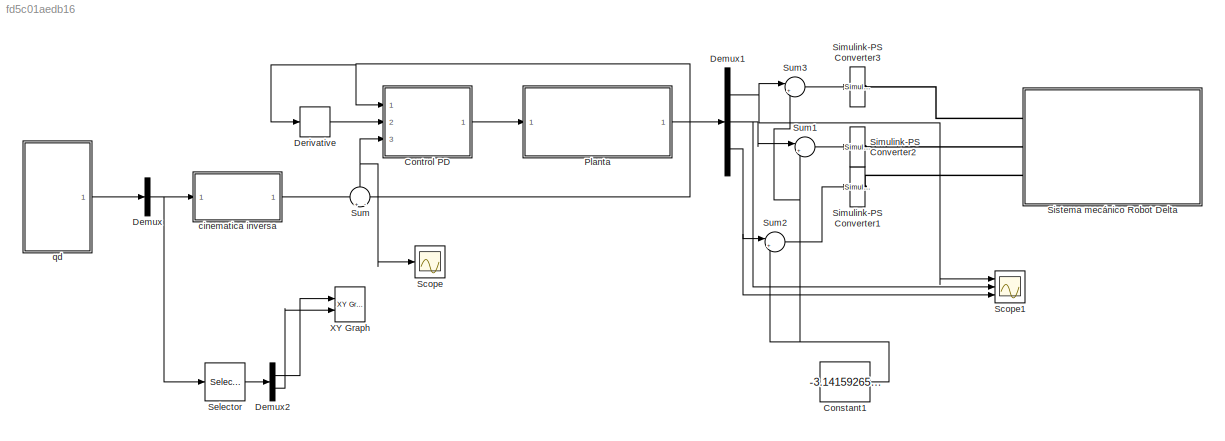
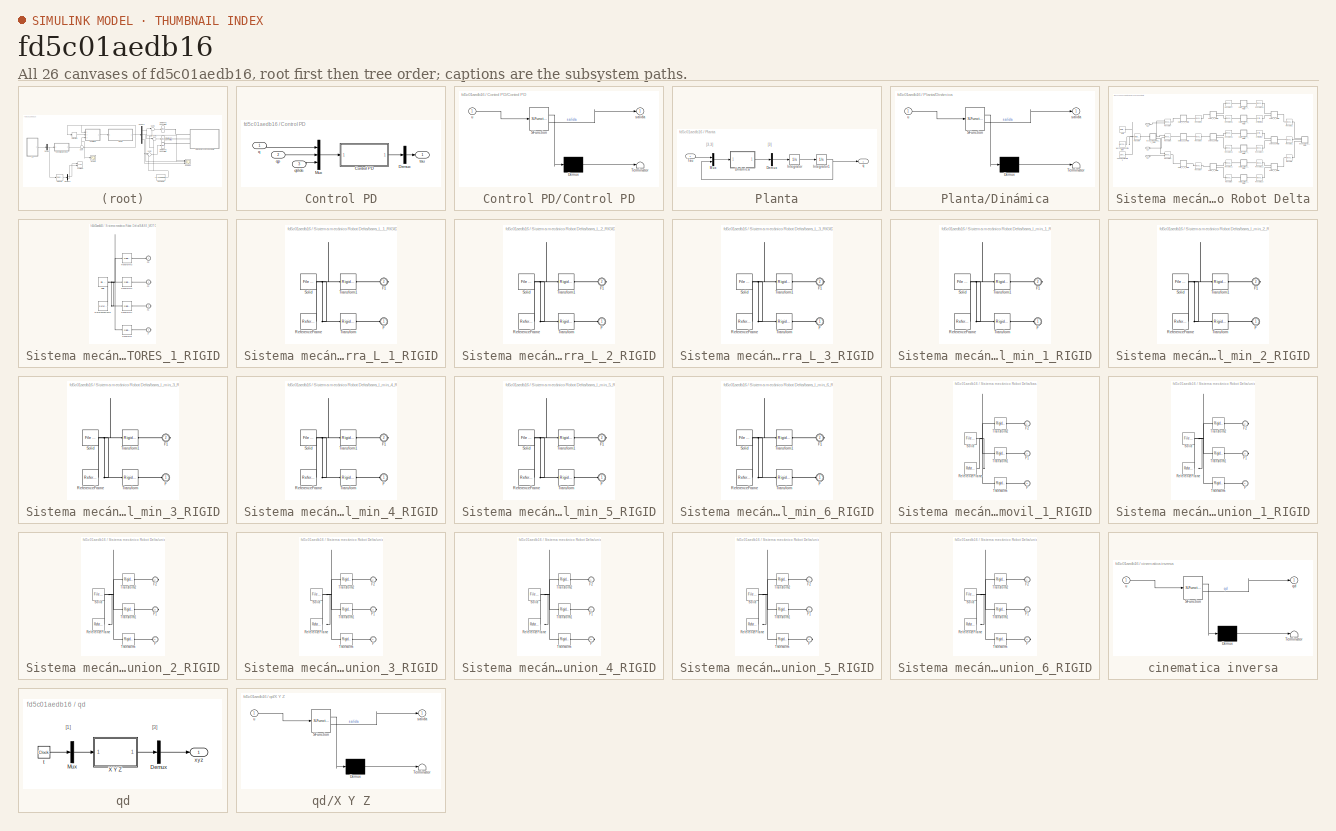
[diagram: thumbnail index - all 26 canvases of the model, root first then tree order]
MODEL slx_fd5c01aedb16
KIND model
CONFIG AbsTol = auto
CONFIG EnableMultiTasking = off
CONFIG FixedStep = auto
CONFIG MaxStep = 0.001
CONFIG MinStep = auto
CONFIG RelTol = 1e-3
CONFIG SampleTimeConstraint = Unconstrained
CONFIG SolverName = VariableStepAuto
CONFIG StartTime = 0.0
CONFIG StopTime = 25
WORKSPACE source: external: MATLAB File  (data not in archive)
BLOCK [Constant] Constant1
  Value = -3.141592654/2
BLOCK [SubSystem] Control PD
  Ports = [3, 1]
  RequestExecContextInheritance = off
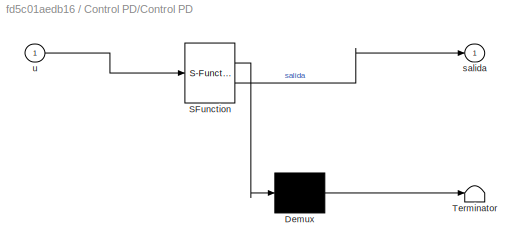
BLOCK [SubSystem] Control PD/Control PD
  ErrorFcn = Stateflow.Translate.translate
  PermitHierarchicalResolution = ExplicitOnly
  Ports = [1, 1]
  RequestExecContextInheritance = off
  SFBlockType = MATLAB Function
  TreatAsAtomicUnit = on
BLOCK [Demux] Control PD/Control PD/ Demux 
  Outputs = 1
  Ports = [1, 1]
BLOCK [S-Function] Control PD/Control PD/ SFunction 
  EnableBusSupport = on
  FunctionName = sf_sfun
  PortCounts = [1 2]
  Ports = [1, 2]
  SFcnIsStateOwnerBlock = off
  SFunctionDeploymentMode = off
  Tag = Stateflow S-Function 1
BLOCK [Terminator] Control PD/Control PD/ Terminator 
BLOCK [Outport] Control PD/Control PD/salida
BLOCK [Inport] Control PD/Control PD/u
BLOCK [Demux] Control PD/Demux
  Outputs = [3]
  Ports = [1, 1]
BLOCK [Mux] Control PD/Mux
  DisplayOption = bar
  Inputs = [3,3,3]
  Ports = [3, 1]
BLOCK [Inport] Control PD/q
BLOCK [Inport] Control PD/qp
  Port = 2
BLOCK [Inport] Control PD/qtilde
  Port = 3
BLOCK [Outport] Control PD/tau
BLOCK [Demux] Demux
  Outputs = [3]
  Ports = [1, 1]
BLOCK [Demux] Demux1
  Outputs = 3
  Ports = [1, 3]
BLOCK [Demux] Demux2
  Outputs = 2
  Ports = [1, 2]
BLOCK [Derivative] Derivative
BLOCK [SubSystem] Planta
  Ports = [1, 1]
  RequestExecContextInheritance = off
BLOCK [Demux] Planta/Demux
  Outputs = [3]
  Ports = [1, 1]
BLOCK [SubSystem] Planta/Dinámica
  ErrorFcn = Stateflow.Translate.translate
  PermitHierarchicalResolution = ExplicitOnly
  Ports = [1, 1]
  RequestExecContextInheritance = off
  SFBlockType = MATLAB Function
  TreatAsAtomicUnit = on
BLOCK [Demux] Planta/Dinámica/ Demux 
  Outputs = 1
  Ports = [1, 1]
BLOCK [S-Function] Planta/Dinámica/ SFunction 
  EnableBusSupport = on
  FunctionName = sf_sfun
  PortCounts = [1 2]
  Ports = [1, 2]
  SFcnIsStateOwnerBlock = off
  SFunctionDeploymentMode = off
  Tag = Stateflow S-Function 2
BLOCK [Terminator] Planta/Dinámica/ Terminator 
BLOCK [Outport] Planta/Dinámica/salida
BLOCK [Inport] Planta/Dinámica/u
BLOCK [Integrator] Planta/Integrator
  Ports = [1, 1]
BLOCK [Integrator] Planta/Integrator1
  Ports = [1, 1]
BLOCK [Mux] Planta/Mux
  DisplayOption = bar
  Inputs = [3,3]
  Ports = [2, 1]
BLOCK [Inport] Planta/Tau
BLOCK [Outport] Planta/q
BLOCK [Scope] Scope
  Floating = off
  NumInputPorts = 1
  Ports = [1]
  ScopeSpecificationString = Simulink.scopes.TimeScopeBlockCfg('CurrentConfiguration', extmgr.ConfigurationSet(extmgr.Configuration('Core','General UI',true),extmgr.Configuration('Core','Source UI',true),extmgr.Configuration('Sources','WiredSimulink',true),extmgr.Configuration('Visuals','Time Domain',true,'SerializedDisplays',{struct('MinYLimReal','-0.23126','MaxYLimReal','1.00549','YLabelReal','','MinYLimMag','0.00000','MaxY...<+1370ch>
BLOCK [Scope] Scope1
  Floating = off
  NumInputPorts = 3
  Ports = [3]
  ScopeSpecificationString = Simulink.scopes.TimeScopeBlockCfg('CurrentConfiguration', extmgr.ConfigurationSet(extmgr.Configuration('Core','General UI',true),extmgr.Configuration('Core','Source UI',true),extmgr.Configuration('Sources','WiredSimulink',true,'DataLoggingVariableName','ScopeData1'),extmgr.Configuration('Visuals','Time Domain',true,'SerializedDisplays',{struct('MinYLimReal','-0.20833','MaxYLimReal','1.87497','YLab...<+1418ch>
BLOCK [Selector] Selector
  IndexOptions = Index vector (dialog)
  Indices = [1 2]
  InputPortWidth = 3
  OutputSizes = 1
  Ports = [1, 1]
BLOCK [Reference] Simulink-PS Converter1  REF=nesl_utility/Simulink-PS
Converter
  Ports = [1, 0, 0, 0, 0, 0, 1]
  SourceBlock = nesl_utility/Simulink-PS\nConverter
  SourceProductBaseCode = SS
  SourceType = Simulink-PS\nConverter
BLOCK [Reference] Simulink-PS Converter2  REF=nesl_utility/Simulink-PS
Converter
  Ports = [1, 0, 0, 0, 0, 0, 1]
  SourceBlock = nesl_utility/Simulink-PS\nConverter
  SourceProductBaseCode = SS
  SourceType = Simulink-PS\nConverter
BLOCK [Reference] Simulink-PS Converter3  REF=nesl_utility/Simulink-PS
Converter
  Ports = [1, 0, 0, 0, 0, 0, 1]
  SourceBlock = nesl_utility/Simulink-PS\nConverter
  SourceProductBaseCode = SS
  SourceType = Simulink-PS\nConverter
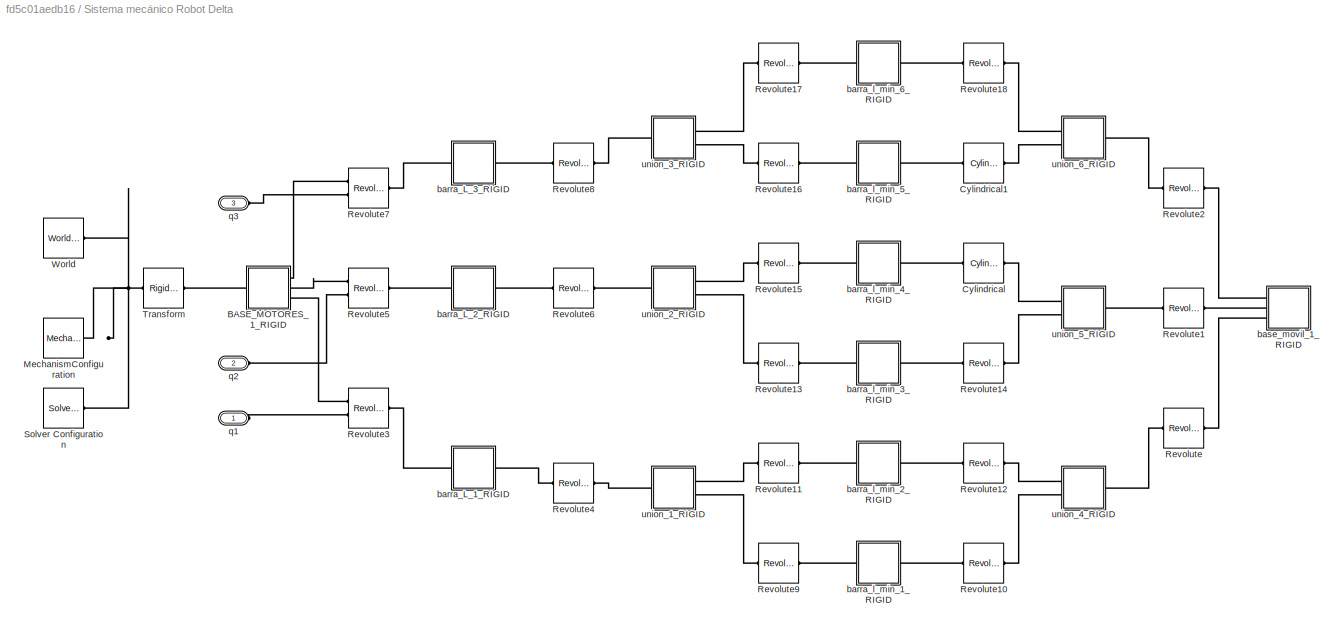
BLOCK [SubSystem] Sistema mecánico Robot Delta
  Ports = [0, 0, 0, 0, 0, 3]
  RequestExecContextInheritance = off
BLOCK [SubSystem] Sistema mecánico Robot Delta/BASE_MOTORES_1_RIGID
  Ports = [0, 0, 0, 0, 0, 1, 3]
  RequestExecContextInheritance = off
BLOCK [PMIOPort] Sistema mecánico Robot Delta/BASE_MOTORES_1_RIGID/F
  Port = 4
  Side = Right
BLOCK [PMIOPort] Sistema mecánico Robot Delta/BASE_MOTORES_1_RIGID/F1
  Port = 3
  Side = Right
BLOCK [PMIOPort] Sistema mecánico Robot Delta/BASE_MOTORES_1_RIGID/F2
  Port = 2
  Side = Right
BLOCK [PMIOPort] Sistema mecánico Robot Delta/BASE_MOTORES_1_RIGID/F3
  Side = Left
BLOCK [Reference] Sistema mecánico Robot Delta/BASE_MOTORES_1_RIGID/ReferenceFrame  REF=sm_lib/Frames and
Transforms/Reference
Frame
  Ports = [0, 0, 0, 0, 0, 0, 1]
  SourceBlock = sm_lib/Frames and\nTransforms/Reference\nFrame
  SourceProductBaseCode = MS
  SourceType = Reference\nFrame
BLOCK [Reference] Sistema mecánico Robot Delta/BASE_MOTORES_1_RIGID/Solid  REF=sm_lib/Body Elements/File Solid
  Ports = [0, 0, 0, 0, 0, 0, 1]
  SourceBlock = sm_lib/Body Elements/File Solid
  SourceProductBaseCode = MS
  SourceType = File Solid
BLOCK [Reference] Sistema mecánico Robot Delta/BASE_MOTORES_1_RIGID/Transform  REF=sm_lib/Frames and
Transforms/Rigid
Transform
  Ports = [0, 0, 0, 0, 0, 1, 1]
  SourceBlock = sm_lib/Frames and\nTransforms/Rigid\nTransform
  SourceProductBaseCode = MS
  SourceType = Rigid\nTransform
BLOCK [Reference] Sistema mecánico Robot Delta/BASE_MOTORES_1_RIGID/Transform1  REF=sm_lib/Frames and
Transforms/Rigid
Transform
  Ports = [0, 0, 0, 0, 0, 1, 1]
  SourceBlock = sm_lib/Frames and\nTransforms/Rigid\nTransform
  SourceProductBaseCode = MS
  SourceType = Rigid\nTransform
BLOCK [Reference] Sistema mecánico Robot Delta/BASE_MOTORES_1_RIGID/Transform2  REF=sm_lib/Frames and
Transforms/Rigid
Transform
  Ports = [0, 0, 0, 0, 0, 1, 1]
  SourceBlock = sm_lib/Frames and\nTransforms/Rigid\nTransform
  SourceProductBaseCode = MS
  SourceType = Rigid\nTransform
BLOCK [Reference] Sistema mecánico Robot Delta/BASE_MOTORES_1_RIGID/Transform3  REF=sm_lib/Frames and
Transforms/Rigid
Transform
  Ports = [0, 0, 0, 0, 0, 1, 1]
  SourceBlock = sm_lib/Frames and\nTransforms/Rigid\nTransform
  SourceProductBaseCode = MS
  SourceType = Rigid\nTransform
BLOCK [Reference] Sistema mecánico Robot Delta/Cylindrical  REF=sm_lib/Joints/Cylindrical
Joint
  Ports = [0, 0, 0, 0, 0, 1, 1]
  SourceBlock = sm_lib/Joints/Cylindrical\nJoint
  SourceProductBaseCode = MS
  SourceType = Cylindrical\nJoint
BLOCK [Reference] Sistema mecánico Robot Delta/Cylindrical1  REF=sm_lib/Joints/Cylindrical
Joint
  Ports = [0, 0, 0, 0, 0, 1, 1]
  SourceBlock = sm_lib/Joints/Cylindrical\nJoint
  SourceProductBaseCode = MS
  SourceType = Cylindrical\nJoint
BLOCK [Reference] Sistema mecánico Robot Delta/MechanismConfiguration  REF=sm_lib/Utilities/Mechanism
Configuration
  Ports = [0, 0, 0, 0, 0, 0, 1]
  SourceBlock = sm_lib/Utilities/Mechanism\nConfiguration
  SourceProductBaseCode = MS
  SourceType = Mechanism\nConfiguration
BLOCK [Reference] Sistema mecánico Robot Delta/Revolute  REF=sm_lib/Joints/Revolute Joint
  Ports = [0, 0, 0, 0, 0, 1, 1]
  SourceBlock = sm_lib/Joints/Revolute Joint
  SourceProductBaseCode = MS
  SourceType = Revolute Joint
BLOCK [Reference] Sistema mecánico Robot Delta/Revolute1  REF=sm_lib/Joints/Revolute Joint
  Ports = [0, 0, 0, 0, 0, 1, 1]
  SourceBlock = sm_lib/Joints/Revolute Joint
  SourceProductBaseCode = MS
  SourceType = Revolute Joint
BLOCK [Reference] Sistema mecánico Robot Delta/Revolute10  REF=sm_lib/Joints/Revolute Joint
  Ports = [0, 0, 0, 0, 0, 1, 1]
  SourceBlock = sm_lib/Joints/Revolute Joint
  SourceProductBaseCode = MS
  SourceType = Revolute Joint
BLOCK [Reference] Sistema mecánico Robot Delta/Revolute11  REF=sm_lib/Joints/Revolute Joint
  Ports = [0, 0, 0, 0, 0, 1, 1]
  SourceBlock = sm_lib/Joints/Revolute Joint
  SourceProductBaseCode = MS
  SourceType = Revolute Joint
BLOCK [Reference] Sistema mecánico Robot Delta/Revolute12  REF=sm_lib/Joints/Revolute Joint
  Ports = [0, 0, 0, 0, 0, 1, 1]
  SourceBlock = sm_lib/Joints/Revolute Joint
  SourceProductBaseCode = MS
  SourceType = Revolute Joint
BLOCK [Reference] Sistema mecánico Robot Delta/Revolute13  REF=sm_lib/Joints/Revolute Joint
  Ports = [0, 0, 0, 0, 0, 1, 1]
  SourceBlock = sm_lib/Joints/Revolute Joint
  SourceProductBaseCode = MS
  SourceType = Revolute Joint
BLOCK [Reference] Sistema mecánico Robot Delta/Revolute14  REF=sm_lib/Joints/Revolute Joint
  Ports = [0, 0, 0, 0, 0, 1, 1]
  SourceBlock = sm_lib/Joints/Revolute Joint
  SourceProductBaseCode = MS
  SourceType = Revolute Joint
BLOCK [Reference] Sistema mecánico Robot Delta/Revolute15  REF=sm_lib/Joints/Revolute Joint
  Ports = [0, 0, 0, 0, 0, 1, 1]
  SourceBlock = sm_lib/Joints/Revolute Joint
  SourceProductBaseCode = MS
  SourceType = Revolute Joint
BLOCK [Reference] Sistema mecánico Robot Delta/Revolute16  REF=sm_lib/Joints/Revolute Joint
  Ports = [0, 0, 0, 0, 0, 1, 1]
  SourceBlock = sm_lib/Joints/Revolute Joint
  SourceProductBaseCode = MS
  SourceType = Revolute Joint
BLOCK [Reference] Sistema mecánico Robot Delta/Revolute17  REF=sm_lib/Joints/Revolute Joint
  Ports = [0, 0, 0, 0, 0, 1, 1]
  SourceBlock = sm_lib/Joints/Revolute Joint
  SourceProductBaseCode = MS
  SourceType = Revolute Joint
BLOCK [Reference] Sistema mecánico Robot Delta/Revolute18  REF=sm_lib/Joints/Revolute Joint
  Ports = [0, 0, 0, 0, 0, 1, 1]
  SourceBlock = sm_lib/Joints/Revolute Joint
  SourceProductBaseCode = MS
  SourceType = Revolute Joint
BLOCK [Reference] Sistema mecánico Robot Delta/Revolute2  REF=sm_lib/Joints/Revolute Joint
  Ports = [0, 0, 0, 0, 0, 1, 1]
  SourceBlock = sm_lib/Joints/Revolute Joint
  SourceProductBaseCode = MS
  SourceType = Revolute Joint
BLOCK [Reference] Sistema mecánico Robot Delta/Revolute3  REF=sm_lib/Joints/Revolute Joint
  Ports = [0, 0, 0, 0, 0, 2, 1]
  SourceBlock = sm_lib/Joints/Revolute Joint
  SourceProductBaseCode = MS
  SourceType = Revolute Joint
BLOCK [Reference] Sistema mecánico Robot Delta/Revolute4  REF=sm_lib/Joints/Revolute Joint
  Ports = [0, 0, 0, 0, 0, 1, 1]
  SourceBlock = sm_lib/Joints/Revolute Joint
  SourceProductBaseCode = MS
  SourceType = Revolute Joint
BLOCK [Reference] Sistema mecánico Robot Delta/Revolute5  REF=sm_lib/Joints/Revolute Joint
  Ports = [0, 0, 0, 0, 0, 2, 1]
  SourceBlock = sm_lib/Joints/Revolute Joint
  SourceProductBaseCode = MS
  SourceType = Revolute Joint
BLOCK [Reference] Sistema mecánico Robot Delta/Revolute6  REF=sm_lib/Joints/Revolute Joint
  Ports = [0, 0, 0, 0, 0, 1, 1]
  SourceBlock = sm_lib/Joints/Revolute Joint
  SourceProductBaseCode = MS
  SourceType = Revolute Joint
BLOCK [Reference] Sistema mecánico Robot Delta/Revolute7  REF=sm_lib/Joints/Revolute Joint
  Ports = [0, 0, 0, 0, 0, 2, 1]
  SourceBlock = sm_lib/Joints/Revolute Joint
  SourceProductBaseCode = MS
  SourceType = Revolute Joint
BLOCK [Reference] Sistema mecánico Robot Delta/Revolute8  REF=sm_lib/Joints/Revolute Joint
  Ports = [0, 0, 0, 0, 0, 1, 1]
  SourceBlock = sm_lib/Joints/Revolute Joint
  SourceProductBaseCode = MS
  SourceType = Revolute Joint
BLOCK [Reference] Sistema mecánico Robot Delta/Revolute9  REF=sm_lib/Joints/Revolute Joint
  Ports = [0, 0, 0, 0, 0, 1, 1]
  SourceBlock = sm_lib/Joints/Revolute Joint
  SourceProductBaseCode = MS
  SourceType = Revolute Joint
BLOCK [Reference] Sistema mecánico Robot Delta/Solver Configuration  REF=nesl_utility/Solver
Configuration
  Ports = [0, 0, 0, 0, 0, 0, 1]
  SourceBlock = nesl_utility/Solver\nConfiguration
  SourceProductBaseCode = SS
  SourceType = Solver\nConfiguration
BLOCK [Reference] Sistema mecánico Robot Delta/Transform  REF=sm_lib/Frames and
Transforms/Rigid
Transform
  Ports = [0, 0, 0, 0, 0, 1, 1]
  SourceBlock = sm_lib/Frames and\nTransforms/Rigid\nTransform
  SourceProductBaseCode = MS
  SourceType = Rigid\nTransform
BLOCK [Reference] Sistema mecánico Robot Delta/World  REF=sm_lib/Frames and
Transforms/World Frame
  Ports = [0, 0, 0, 0, 0, 0, 1]
  SourceBlock = sm_lib/Frames and\nTransforms/World Frame
  SourceProductBaseCode = MS
  SourceType = World Frame
BLOCK [SubSystem] Sistema mecánico Robot Delta/barra_L_1_RIGID
  Ports = [0, 0, 0, 0, 0, 1, 1]
  RequestExecContextInheritance = off
BLOCK [PMIOPort] Sistema mecánico Robot Delta/barra_L_1_RIGID/F
  Side = Left
BLOCK [PMIOPort] Sistema mecánico Robot Delta/barra_L_1_RIGID/F1
  Port = 2
  Side = Right
BLOCK [Reference] Sistema mecánico Robot Delta/barra_L_1_RIGID/ReferenceFrame  REF=sm_lib/Frames and
Transforms/Reference
Frame
  Ports = [0, 0, 0, 0, 0, 0, 1]
  SourceBlock = sm_lib/Frames and\nTransforms/Reference\nFrame
  SourceProductBaseCode = MS
  SourceType = Reference\nFrame
BLOCK [Reference] Sistema mecánico Robot Delta/barra_L_1_RIGID/Solid  REF=sm_lib/Body Elements/File Solid
  Ports = [0, 0, 0, 0, 0, 0, 1]
  SourceBlock = sm_lib/Body Elements/File Solid
  SourceProductBaseCode = MS
  SourceType = File Solid
BLOCK [Reference] Sistema mecánico Robot Delta/barra_L_1_RIGID/Transform  REF=sm_lib/Frames and
Transforms/Rigid
Transform
  Ports = [0, 0, 0, 0, 0, 1, 1]
  SourceBlock = sm_lib/Frames and\nTransforms/Rigid\nTransform
  SourceProductBaseCode = MS
  SourceType = Rigid\nTransform
BLOCK [Reference] Sistema mecánico Robot Delta/barra_L_1_RIGID/Transform1  REF=sm_lib/Frames and
Transforms/Rigid
Transform
  Ports = [0, 0, 0, 0, 0, 1, 1]
  SourceBlock = sm_lib/Frames and\nTransforms/Rigid\nTransform
  SourceProductBaseCode = MS
  SourceType = Rigid\nTransform
BLOCK [SubSystem] Sistema mecánico Robot Delta/barra_L_2_RIGID
  Ports = [0, 0, 0, 0, 0, 1, 1]
  RequestExecContextInheritance = off
BLOCK [PMIOPort] Sistema mecánico Robot Delta/barra_L_2_RIGID/F
  Side = Left
BLOCK [PMIOPort] Sistema mecánico Robot Delta/barra_L_2_RIGID/F1
  Port = 2
  Side = Right
BLOCK [Reference] Sistema mecánico Robot Delta/barra_L_2_RIGID/ReferenceFrame  REF=sm_lib/Frames and
Transforms/Reference
Frame
  Ports = [0, 0, 0, 0, 0, 0, 1]
  SourceBlock = sm_lib/Frames and\nTransforms/Reference\nFrame
  SourceProductBaseCode = MS
  SourceType = Reference\nFrame
BLOCK [Reference] Sistema mecánico Robot Delta/barra_L_2_RIGID/Solid  REF=sm_lib/Body Elements/File Solid
  Ports = [0, 0, 0, 0, 0, 0, 1]
  SourceBlock = sm_lib/Body Elements/File Solid
  SourceProductBaseCode = MS
  SourceType = File Solid
BLOCK [Reference] Sistema mecánico Robot Delta/barra_L_2_RIGID/Transform  REF=sm_lib/Frames and
Transforms/Rigid
Transform
  Ports = [0, 0, 0, 0, 0, 1, 1]
  SourceBlock = sm_lib/Frames and\nTransforms/Rigid\nTransform
  SourceProductBaseCode = MS
  SourceType = Rigid\nTransform
BLOCK [Reference] Sistema mecánico Robot Delta/barra_L_2_RIGID/Transform1  REF=sm_lib/Frames and
Transforms/Rigid
Transform
  Ports = [0, 0, 0, 0, 0, 1, 1]
  SourceBlock = sm_lib/Frames and\nTransforms/Rigid\nTransform
  SourceProductBaseCode = MS
  SourceType = Rigid\nTransform
BLOCK [SubSystem] Sistema mecánico Robot Delta/barra_L_3_RIGID
  Ports = [0, 0, 0, 0, 0, 1, 1]
  RequestExecContextInheritance = off
BLOCK [PMIOPort] Sistema mecánico Robot Delta/barra_L_3_RIGID/F
  Side = Left
BLOCK [PMIOPort] Sistema mecánico Robot Delta/barra_L_3_RIGID/F1
  Port = 2
  Side = Right
BLOCK [Reference] Sistema mecánico Robot Delta/barra_L_3_RIGID/ReferenceFrame  REF=sm_lib/Frames and
Transforms/Reference
Frame
  Ports = [0, 0, 0, 0, 0, 0, 1]
  SourceBlock = sm_lib/Frames and\nTransforms/Reference\nFrame
  SourceProductBaseCode = MS
  SourceType = Reference\nFrame
BLOCK [Reference] Sistema mecánico Robot Delta/barra_L_3_RIGID/Solid  REF=sm_lib/Body Elements/File Solid
  Ports = [0, 0, 0, 0, 0, 0, 1]
  SourceBlock = sm_lib/Body Elements/File Solid
  SourceProductBaseCode = MS
  SourceType = File Solid
BLOCK [Reference] Sistema mecánico Robot Delta/barra_L_3_RIGID/Transform  REF=sm_lib/Frames and
Transforms/Rigid
Transform
  Ports = [0, 0, 0, 0, 0, 1, 1]
  SourceBlock = sm_lib/Frames and\nTransforms/Rigid\nTransform
  SourceProductBaseCode = MS
  SourceType = Rigid\nTransform
BLOCK [Reference] Sistema mecánico Robot Delta/barra_L_3_RIGID/Transform1  REF=sm_lib/Frames and
Transforms/Rigid
Transform
  Ports = [0, 0, 0, 0, 0, 1, 1]
  SourceBlock = sm_lib/Frames and\nTransforms/Rigid\nTransform
  SourceProductBaseCode = MS
  SourceType = Rigid\nTransform
BLOCK [SubSystem] Sistema mecánico Robot Delta/barra_l_min_1_RIGID
  Ports = [0, 0, 0, 0, 0, 1, 1]
  RequestExecContextInheritance = off
BLOCK [PMIOPort] Sistema mecánico Robot Delta/barra_l_min_1_RIGID/F
  Side = Left
BLOCK [PMIOPort] Sistema mecánico Robot Delta/barra_l_min_1_RIGID/F1
  Port = 2
  Side = Right
BLOCK [Reference] Sistema mecánico Robot Delta/barra_l_min_1_RIGID/ReferenceFrame  REF=sm_lib/Frames and
Transforms/Reference
Frame
  Ports = [0, 0, 0, 0, 0, 0, 1]
  SourceBlock = sm_lib/Frames and\nTransforms/Reference\nFrame
  SourceProductBaseCode = MS
  SourceType = Reference\nFrame
BLOCK [Reference] Sistema mecánico Robot Delta/barra_l_min_1_RIGID/Solid  REF=sm_lib/Body Elements/File Solid
  Ports = [0, 0, 0, 0, 0, 0, 1]
  SourceBlock = sm_lib/Body Elements/File Solid
  SourceProductBaseCode = MS
  SourceType = File Solid
BLOCK [Reference] Sistema mecánico Robot Delta/barra_l_min_1_RIGID/Transform  REF=sm_lib/Frames and
Transforms/Rigid
Transform
  Ports = [0, 0, 0, 0, 0, 1, 1]
  SourceBlock = sm_lib/Frames and\nTransforms/Rigid\nTransform
  SourceProductBaseCode = MS
  SourceType = Rigid\nTransform
BLOCK [Reference] Sistema mecánico Robot Delta/barra_l_min_1_RIGID/Transform1  REF=sm_lib/Frames and
Transforms/Rigid
Transform
  Ports = [0, 0, 0, 0, 0, 1, 1]
  SourceBlock = sm_lib/Frames and\nTransforms/Rigid\nTransform
  SourceProductBaseCode = MS
  SourceType = Rigid\nTransform
BLOCK [SubSystem] Sistema mecánico Robot Delta/barra_l_min_2_RIGID
  Ports = [0, 0, 0, 0, 0, 1, 1]
  RequestExecContextInheritance = off
BLOCK [PMIOPort] Sistema mecánico Robot Delta/barra_l_min_2_RIGID/F
  Side = Left
BLOCK [PMIOPort] Sistema mecánico Robot Delta/barra_l_min_2_RIGID/F1
  Port = 2
  Side = Right
BLOCK [Reference] Sistema mecánico Robot Delta/barra_l_min_2_RIGID/ReferenceFrame  REF=sm_lib/Frames and
Transforms/Reference
Frame
  Ports = [0, 0, 0, 0, 0, 0, 1]
  SourceBlock = sm_lib/Frames and\nTransforms/Reference\nFrame
  SourceProductBaseCode = MS
  SourceType = Reference\nFrame
BLOCK [Reference] Sistema mecánico Robot Delta/barra_l_min_2_RIGID/Solid  REF=sm_lib/Body Elements/File Solid
  Ports = [0, 0, 0, 0, 0, 0, 1]
  SourceBlock = sm_lib/Body Elements/File Solid
  SourceProductBaseCode = MS
  SourceType = File Solid
BLOCK [Reference] Sistema mecánico Robot Delta/barra_l_min_2_RIGID/Transform  REF=sm_lib/Frames and
Transforms/Rigid
Transform
  Ports = [0, 0, 0, 0, 0, 1, 1]
  SourceBlock = sm_lib/Frames and\nTransforms/Rigid\nTransform
  SourceProductBaseCode = MS
  SourceType = Rigid\nTransform
BLOCK [Reference] Sistema mecánico Robot Delta/barra_l_min_2_RIGID/Transform1  REF=sm_lib/Frames and
Transforms/Rigid
Transform
  Ports = [0, 0, 0, 0, 0, 1, 1]
  SourceBlock = sm_lib/Frames and\nTransforms/Rigid\nTransform
  SourceProductBaseCode = MS
  SourceType = Rigid\nTransform
BLOCK [SubSystem] Sistema mecánico Robot Delta/barra_l_min_3_RIGID
  Ports = [0, 0, 0, 0, 0, 1, 1]
  RequestExecContextInheritance = off
BLOCK [PMIOPort] Sistema mecánico Robot Delta/barra_l_min_3_RIGID/F
  Side = Left
BLOCK [PMIOPort] Sistema mecánico Robot Delta/barra_l_min_3_RIGID/F1
  Port = 2
  Side = Right
BLOCK [Reference] Sistema mecánico Robot Delta/barra_l_min_3_RIGID/ReferenceFrame  REF=sm_lib/Frames and
Transforms/Reference
Frame
  Ports = [0, 0, 0, 0, 0, 0, 1]
  SourceBlock = sm_lib/Frames and\nTransforms/Reference\nFrame
  SourceProductBaseCode = MS
  SourceType = Reference\nFrame
BLOCK [Reference] Sistema mecánico Robot Delta/barra_l_min_3_RIGID/Solid  REF=sm_lib/Body Elements/File Solid
  Ports = [0, 0, 0, 0, 0, 0, 1]
  SourceBlock = sm_lib/Body Elements/File Solid
  SourceProductBaseCode = MS
  SourceType = File Solid
BLOCK [Reference] Sistema mecánico Robot Delta/barra_l_min_3_RIGID/Transform  REF=sm_lib/Frames and
Transforms/Rigid
Transform
  Ports = [0, 0, 0, 0, 0, 1, 1]
  SourceBlock = sm_lib/Frames and\nTransforms/Rigid\nTransform
  SourceProductBaseCode = MS
  SourceType = Rigid\nTransform
BLOCK [Reference] Sistema mecánico Robot Delta/barra_l_min_3_RIGID/Transform1  REF=sm_lib/Frames and
Transforms/Rigid
Transform
  Ports = [0, 0, 0, 0, 0, 1, 1]
  SourceBlock = sm_lib/Frames and\nTransforms/Rigid\nTransform
  SourceProductBaseCode = MS
  SourceType = Rigid\nTransform
BLOCK [SubSystem] Sistema mecánico Robot Delta/barra_l_min_4_RIGID
  Ports = [0, 0, 0, 0, 0, 1, 1]
  RequestExecContextInheritance = off
BLOCK [PMIOPort] Sistema mecánico Robot Delta/barra_l_min_4_RIGID/F
  Side = Left
BLOCK [PMIOPort] Sistema mecánico Robot Delta/barra_l_min_4_RIGID/F1
  Port = 2
  Side = Right
BLOCK [Reference] Sistema mecánico Robot Delta/barra_l_min_4_RIGID/ReferenceFrame  REF=sm_lib/Frames and
Transforms/Reference
Frame
  Ports = [0, 0, 0, 0, 0, 0, 1]
  SourceBlock = sm_lib/Frames and\nTransforms/Reference\nFrame
  SourceProductBaseCode = MS
  SourceType = Reference\nFrame
BLOCK [Reference] Sistema mecánico Robot Delta/barra_l_min_4_RIGID/Solid  REF=sm_lib/Body Elements/File Solid
  Ports = [0, 0, 0, 0, 0, 0, 1]
  SourceBlock = sm_lib/Body Elements/File Solid
  SourceProductBaseCode = MS
  SourceType = File Solid
BLOCK [Reference] Sistema mecánico Robot Delta/barra_l_min_4_RIGID/Transform  REF=sm_lib/Frames and
Transforms/Rigid
Transform
  Ports = [0, 0, 0, 0, 0, 1, 1]
  SourceBlock = sm_lib/Frames and\nTransforms/Rigid\nTransform
  SourceProductBaseCode = MS
  SourceType = Rigid\nTransform
BLOCK [Reference] Sistema mecánico Robot Delta/barra_l_min_4_RIGID/Transform1  REF=sm_lib/Frames and
Transforms/Rigid
Transform
  Ports = [0, 0, 0, 0, 0, 1, 1]
  SourceBlock = sm_lib/Frames and\nTransforms/Rigid\nTransform
  SourceProductBaseCode = MS
  SourceType = Rigid\nTransform
BLOCK [SubSystem] Sistema mecánico Robot Delta/barra_l_min_5_RIGID
  Ports = [0, 0, 0, 0, 0, 1, 1]
  RequestExecContextInheritance = off
BLOCK [PMIOPort] Sistema mecánico Robot Delta/barra_l_min_5_RIGID/F
  Side = Left
BLOCK [PMIOPort] Sistema mecánico Robot Delta/barra_l_min_5_RIGID/F1
  Port = 2
  Side = Right
BLOCK [Reference] Sistema mecánico Robot Delta/barra_l_min_5_RIGID/ReferenceFrame  REF=sm_lib/Frames and
Transforms/Reference
Frame
  Ports = [0, 0, 0, 0, 0, 0, 1]
  SourceBlock = sm_lib/Frames and\nTransforms/Reference\nFrame
  SourceProductBaseCode = MS
  SourceType = Reference\nFrame
BLOCK [Reference] Sistema mecánico Robot Delta/barra_l_min_5_RIGID/Solid  REF=sm_lib/Body Elements/File Solid
  Ports = [0, 0, 0, 0, 0, 0, 1]
  SourceBlock = sm_lib/Body Elements/File Solid
  SourceProductBaseCode = MS
  SourceType = File Solid
BLOCK [Reference] Sistema mecánico Robot Delta/barra_l_min_5_RIGID/Transform  REF=sm_lib/Frames and
Transforms/Rigid
Transform
  Ports = [0, 0, 0, 0, 0, 1, 1]
  SourceBlock = sm_lib/Frames and\nTransforms/Rigid\nTransform
  SourceProductBaseCode = MS
  SourceType = Rigid\nTransform
BLOCK [Reference] Sistema mecánico Robot Delta/barra_l_min_5_RIGID/Transform1  REF=sm_lib/Frames and
Transforms/Rigid
Transform
  Ports = [0, 0, 0, 0, 0, 1, 1]
  SourceBlock = sm_lib/Frames and\nTransforms/Rigid\nTransform
  SourceProductBaseCode = MS
  SourceType = Rigid\nTransform
BLOCK [SubSystem] Sistema mecánico Robot Delta/barra_l_min_6_RIGID
  Ports = [0, 0, 0, 0, 0, 1, 1]
  RequestExecContextInheritance = off
BLOCK [PMIOPort] Sistema mecánico Robot Delta/barra_l_min_6_RIGID/F
  Side = Left
BLOCK [PMIOPort] Sistema mecánico Robot Delta/barra_l_min_6_RIGID/F1
  Port = 2
  Side = Right
BLOCK [Reference] Sistema mecánico Robot Delta/barra_l_min_6_RIGID/ReferenceFrame  REF=sm_lib/Frames and
Transforms/Reference
Frame
  Ports = [0, 0, 0, 0, 0, 0, 1]
  SourceBlock = sm_lib/Frames and\nTransforms/Reference\nFrame
  SourceProductBaseCode = MS
  SourceType = Reference\nFrame
BLOCK [Reference] Sistema mecánico Robot Delta/barra_l_min_6_RIGID/Solid  REF=sm_lib/Body Elements/File Solid
  Ports = [0, 0, 0, 0, 0, 0, 1]
  SourceBlock = sm_lib/Body Elements/File Solid
  SourceProductBaseCode = MS
  SourceType = File Solid
BLOCK [Reference] Sistema mecánico Robot Delta/barra_l_min_6_RIGID/Transform  REF=sm_lib/Frames and
Transforms/Rigid
Transform
  Ports = [0, 0, 0, 0, 0, 1, 1]
  SourceBlock = sm_lib/Frames and\nTransforms/Rigid\nTransform
  SourceProductBaseCode = MS
  SourceType = Rigid\nTransform
BLOCK [Reference] Sistema mecánico Robot Delta/barra_l_min_6_RIGID/Transform1  REF=sm_lib/Frames and
Transforms/Rigid
Transform
  Ports = [0, 0, 0, 0, 0, 1, 1]
  SourceBlock = sm_lib/Frames and\nTransforms/Rigid\nTransform
  SourceProductBaseCode = MS
  SourceType = Rigid\nTransform
BLOCK [SubSystem] Sistema mecánico Robot Delta/base_movil_1_RIGID
  Ports = [0, 0, 0, 0, 0, 3]
  RequestExecContextInheritance = off
BLOCK [PMIOPort] Sistema mecánico Robot Delta/base_movil_1_RIGID/F
  Port = 3
  Side = Left
BLOCK [PMIOPort] Sistema mecánico Robot Delta/base_movil_1_RIGID/F1
  Port = 2
  Side = Left
BLOCK [PMIOPort] Sistema mecánico Robot Delta/base_movil_1_RIGID/F2
  Side = Left
BLOCK [Reference] Sistema mecánico Robot Delta/base_movil_1_RIGID/ReferenceFrame  REF=sm_lib/Frames and
Transforms/Reference
Frame
  Ports = [0, 0, 0, 0, 0, 0, 1]
  SourceBlock = sm_lib/Frames and\nTransforms/Reference\nFrame
  SourceProductBaseCode = MS
  SourceType = Reference\nFrame
BLOCK [Reference] Sistema mecánico Robot Delta/base_movil_1_RIGID/Solid  REF=sm_lib/Body Elements/File Solid
  Ports = [0, 0, 0, 0, 0, 0, 1]
  SourceBlock = sm_lib/Body Elements/File Solid
  SourceProductBaseCode = MS
  SourceType = File Solid
BLOCK [Reference] Sistema mecánico Robot Delta/base_movil_1_RIGID/Transform  REF=sm_lib/Frames and
Transforms/Rigid
Transform
  Ports = [0, 0, 0, 0, 0, 1, 1]
  SourceBlock = sm_lib/Frames and\nTransforms/Rigid\nTransform
  SourceProductBaseCode = MS
  SourceType = Rigid\nTransform
BLOCK [Reference] Sistema mecánico Robot Delta/base_movil_1_RIGID/Transform1  REF=sm_lib/Frames and
Transforms/Rigid
Transform
  Ports = [0, 0, 0, 0, 0, 1, 1]
  SourceBlock = sm_lib/Frames and\nTransforms/Rigid\nTransform
  SourceProductBaseCode = MS
  SourceType = Rigid\nTransform
BLOCK [Reference] Sistema mecánico Robot Delta/base_movil_1_RIGID/Transform2  REF=sm_lib/Frames and
Transforms/Rigid
Transform
  Ports = [0, 0, 0, 0, 0, 1, 1]
  SourceBlock = sm_lib/Frames and\nTransforms/Rigid\nTransform
  SourceProductBaseCode = MS
  SourceType = Rigid\nTransform
BLOCK [PMIOPort] Sistema mecánico Robot Delta/q1
  Side = Left
BLOCK [PMIOPort] Sistema mecánico Robot Delta/q2
  Port = 2
  Side = Left
BLOCK [PMIOPort] Sistema mecánico Robot Delta/q3
  Port = 3
  Side = Left
BLOCK [SubSystem] Sistema mecánico Robot Delta/union_1_RIGID
  Ports = [0, 0, 0, 0, 0, 1, 2]
  RequestExecContextInheritance = off
BLOCK [PMIOPort] Sistema mecánico Robot Delta/union_1_RIGID/F
  Side = Left
BLOCK [PMIOPort] Sistema mecánico Robot Delta/union_1_RIGID/F1
  Port = 3
  Side = Right
BLOCK [PMIOPort] Sistema mecánico Robot Delta/union_1_RIGID/F2
  Port = 2
  Side = Right
BLOCK [Reference] Sistema mecánico Robot Delta/union_1_RIGID/ReferenceFrame  REF=sm_lib/Frames and
Transforms/Reference
Frame
  Ports = [0, 0, 0, 0, 0, 0, 1]
  SourceBlock = sm_lib/Frames and\nTransforms/Reference\nFrame
  SourceProductBaseCode = MS
  SourceType = Reference\nFrame
BLOCK [Reference] Sistema mecánico Robot Delta/union_1_RIGID/Solid  REF=sm_lib/Body Elements/File Solid
  Ports = [0, 0, 0, 0, 0, 0, 1]
  SourceBlock = sm_lib/Body Elements/File Solid
  SourceProductBaseCode = MS
  SourceType = File Solid
BLOCK [Reference] Sistema mecánico Robot Delta/union_1_RIGID/Transform  REF=sm_lib/Frames and
Transforms/Rigid
Transform
  Ports = [0, 0, 0, 0, 0, 1, 1]
  SourceBlock = sm_lib/Frames and\nTransforms/Rigid\nTransform
  SourceProductBaseCode = MS
  SourceType = Rigid\nTransform
BLOCK [Reference] Sistema mecánico Robot Delta/union_1_RIGID/Transform1  REF=sm_lib/Frames and
Transforms/Rigid
Transform
  Ports = [0, 0, 0, 0, 0, 1, 1]
  SourceBlock = sm_lib/Frames and\nTransforms/Rigid\nTransform
  SourceProductBaseCode = MS
  SourceType = Rigid\nTransform
BLOCK [Reference] Sistema mecánico Robot Delta/union_1_RIGID/Transform2  REF=sm_lib/Frames and
Transforms/Rigid
Transform
  Ports = [0, 0, 0, 0, 0, 1, 1]
  SourceBlock = sm_lib/Frames and\nTransforms/Rigid\nTransform
  SourceProductBaseCode = MS
  SourceType = Rigid\nTransform
BLOCK [SubSystem] Sistema mecánico Robot Delta/union_2_RIGID
  Ports = [0, 0, 0, 0, 0, 1, 2]
  RequestExecContextInheritance = off
BLOCK [PMIOPort] Sistema mecánico Robot Delta/union_2_RIGID/F
  Side = Left
BLOCK [PMIOPort] Sistema mecánico Robot Delta/union_2_RIGID/F1
  Port = 3
  Side = Right
BLOCK [PMIOPort] Sistema mecánico Robot Delta/union_2_RIGID/F2
  Port = 2
  Side = Right
BLOCK [Reference] Sistema mecánico Robot Delta/union_2_RIGID/ReferenceFrame  REF=sm_lib/Frames and
Transforms/Reference
Frame
  Ports = [0, 0, 0, 0, 0, 0, 1]
  SourceBlock = sm_lib/Frames and\nTransforms/Reference\nFrame
  SourceProductBaseCode = MS
  SourceType = Reference\nFrame
BLOCK [Reference] Sistema mecánico Robot Delta/union_2_RIGID/Solid  REF=sm_lib/Body Elements/File Solid
  Ports = [0, 0, 0, 0, 0, 0, 1]
  SourceBlock = sm_lib/Body Elements/File Solid
  SourceProductBaseCode = MS
  SourceType = File Solid
BLOCK [Reference] Sistema mecánico Robot Delta/union_2_RIGID/Transform  REF=sm_lib/Frames and
Transforms/Rigid
Transform
  Ports = [0, 0, 0, 0, 0, 1, 1]
  SourceBlock = sm_lib/Frames and\nTransforms/Rigid\nTransform
  SourceProductBaseCode = MS
  SourceType = Rigid\nTransform
BLOCK [Reference] Sistema mecánico Robot Delta/union_2_RIGID/Transform1  REF=sm_lib/Frames and
Transforms/Rigid
Transform
  Ports = [0, 0, 0, 0, 0, 1, 1]
  SourceBlock = sm_lib/Frames and\nTransforms/Rigid\nTransform
  SourceProductBaseCode = MS
  SourceType = Rigid\nTransform
BLOCK [Reference] Sistema mecánico Robot Delta/union_2_RIGID/Transform2  REF=sm_lib/Frames and
Transforms/Rigid
Transform
  Ports = [0, 0, 0, 0, 0, 1, 1]
  SourceBlock = sm_lib/Frames and\nTransforms/Rigid\nTransform
  SourceProductBaseCode = MS
  SourceType = Rigid\nTransform
BLOCK [SubSystem] Sistema mecánico Robot Delta/union_3_RIGID
  Ports = [0, 0, 0, 0, 0, 1, 2]
  RequestExecContextInheritance = off
BLOCK [PMIOPort] Sistema mecánico Robot Delta/union_3_RIGID/F
  Side = Left
BLOCK [PMIOPort] Sistema mecánico Robot Delta/union_3_RIGID/F1
  Port = 3
  Side = Right
BLOCK [PMIOPort] Sistema mecánico Robot Delta/union_3_RIGID/F2
  Port = 2
  Side = Right
BLOCK [Reference] Sistema mecánico Robot Delta/union_3_RIGID/ReferenceFrame  REF=sm_lib/Frames and
Transforms/Reference
Frame
  Ports = [0, 0, 0, 0, 0, 0, 1]
  SourceBlock = sm_lib/Frames and\nTransforms/Reference\nFrame
  SourceProductBaseCode = MS
  SourceType = Reference\nFrame
BLOCK [Reference] Sistema mecánico Robot Delta/union_3_RIGID/Solid  REF=sm_lib/Body Elements/File Solid
  Ports = [0, 0, 0, 0, 0, 0, 1]
  SourceBlock = sm_lib/Body Elements/File Solid
  SourceProductBaseCode = MS
  SourceType = File Solid
BLOCK [Reference] Sistema mecánico Robot Delta/union_3_RIGID/Transform  REF=sm_lib/Frames and
Transforms/Rigid
Transform
  Ports = [0, 0, 0, 0, 0, 1, 1]
  SourceBlock = sm_lib/Frames and\nTransforms/Rigid\nTransform
  SourceProductBaseCode = MS
  SourceType = Rigid\nTransform
BLOCK [Reference] Sistema mecánico Robot Delta/union_3_RIGID/Transform1  REF=sm_lib/Frames and
Transforms/Rigid
Transform
  Ports = [0, 0, 0, 0, 0, 1, 1]
  SourceBlock = sm_lib/Frames and\nTransforms/Rigid\nTransform
  SourceProductBaseCode = MS
  SourceType = Rigid\nTransform
BLOCK [Reference] Sistema mecánico Robot Delta/union_3_RIGID/Transform2  REF=sm_lib/Frames and
Transforms/Rigid
Transform
  Ports = [0, 0, 0, 0, 0, 1, 1]
  SourceBlock = sm_lib/Frames and\nTransforms/Rigid\nTransform
  SourceProductBaseCode = MS
  SourceType = Rigid\nTransform
BLOCK [SubSystem] Sistema mecánico Robot Delta/union_4_RIGID
  Ports = [0, 0, 0, 0, 0, 2, 1]
  RequestExecContextInheritance = off
BLOCK [PMIOPort] Sistema mecánico Robot Delta/union_4_RIGID/F
  Port = 3
  Side = Right
BLOCK [PMIOPort] Sistema mecánico Robot Delta/union_4_RIGID/F1
  Port = 2
  Side = Left
BLOCK [PMIOPort] Sistema mecánico Robot Delta/union_4_RIGID/F2
  Side = Left
BLOCK [Reference] Sistema mecánico Robot Delta/union_4_RIGID/ReferenceFrame  REF=sm_lib/Frames and
Transforms/Reference
Frame
  Ports = [0, 0, 0, 0, 0, 0, 1]
  SourceBlock = sm_lib/Frames and\nTransforms/Reference\nFrame
  SourceProductBaseCode = MS
  SourceType = Reference\nFrame
BLOCK [Reference] Sistema mecánico Robot Delta/union_4_RIGID/Solid  REF=sm_lib/Body Elements/File Solid
  Ports = [0, 0, 0, 0, 0, 0, 1]
  SourceBlock = sm_lib/Body Elements/File Solid
  SourceProductBaseCode = MS
  SourceType = File Solid
BLOCK [Reference] Sistema mecánico Robot Delta/union_4_RIGID/Transform  REF=sm_lib/Frames and
Transforms/Rigid
Transform
  Ports = [0, 0, 0, 0, 0, 1, 1]
  SourceBlock = sm_lib/Frames and\nTransforms/Rigid\nTransform
  SourceProductBaseCode = MS
  SourceType = Rigid\nTransform
BLOCK [Reference] Sistema mecánico Robot Delta/union_4_RIGID/Transform1  REF=sm_lib/Frames and
Transforms/Rigid
Transform
  Ports = [0, 0, 0, 0, 0, 1, 1]
  SourceBlock = sm_lib/Frames and\nTransforms/Rigid\nTransform
  SourceProductBaseCode = MS
  SourceType = Rigid\nTransform
BLOCK [Reference] Sistema mecánico Robot Delta/union_4_RIGID/Transform2  REF=sm_lib/Frames and
Transforms/Rigid
Transform
  Ports = [0, 0, 0, 0, 0, 1, 1]
  SourceBlock = sm_lib/Frames and\nTransforms/Rigid\nTransform
  SourceProductBaseCode = MS
  SourceType = Rigid\nTransform
BLOCK [SubSystem] Sistema mecánico Robot Delta/union_5_RIGID
  Ports = [0, 0, 0, 0, 0, 2, 1]
  RequestExecContextInheritance = off
BLOCK [PMIOPort] Sistema mecánico Robot Delta/union_5_RIGID/F
  Port = 3
  Side = Right
BLOCK [PMIOPort] Sistema mecánico Robot Delta/union_5_RIGID/F1
  Port = 2
  Side = Left
BLOCK [PMIOPort] Sistema mecánico Robot Delta/union_5_RIGID/F2
  Side = Left
BLOCK [Reference] Sistema mecánico Robot Delta/union_5_RIGID/ReferenceFrame  REF=sm_lib/Frames and
Transforms/Reference
Frame
  Ports = [0, 0, 0, 0, 0, 0, 1]
  SourceBlock = sm_lib/Frames and\nTransforms/Reference\nFrame
  SourceProductBaseCode = MS
  SourceType = Reference\nFrame
BLOCK [Reference] Sistema mecánico Robot Delta/union_5_RIGID/Solid  REF=sm_lib/Body Elements/File Solid
  Ports = [0, 0, 0, 0, 0, 0, 1]
  SourceBlock = sm_lib/Body Elements/File Solid
  SourceProductBaseCode = MS
  SourceType = File Solid
BLOCK [Reference] Sistema mecánico Robot Delta/union_5_RIGID/Transform  REF=sm_lib/Frames and
Transforms/Rigid
Transform
  Ports = [0, 0, 0, 0, 0, 1, 1]
  SourceBlock = sm_lib/Frames and\nTransforms/Rigid\nTransform
  SourceProductBaseCode = MS
  SourceType = Rigid\nTransform
BLOCK [Reference] Sistema mecánico Robot Delta/union_5_RIGID/Transform1  REF=sm_lib/Frames and
Transforms/Rigid
Transform
  Ports = [0, 0, 0, 0, 0, 1, 1]
  SourceBlock = sm_lib/Frames and\nTransforms/Rigid\nTransform
  SourceProductBaseCode = MS
  SourceType = Rigid\nTransform
BLOCK [Reference] Sistema mecánico Robot Delta/union_5_RIGID/Transform2  REF=sm_lib/Frames and
Transforms/Rigid
Transform
  Ports = [0, 0, 0, 0, 0, 1, 1]
  SourceBlock = sm_lib/Frames and\nTransforms/Rigid\nTransform
  SourceProductBaseCode = MS
  SourceType = Rigid\nTransform
BLOCK [SubSystem] Sistema mecánico Robot Delta/union_6_RIGID
  Ports = [0, 0, 0, 0, 0, 2, 1]
  RequestExecContextInheritance = off
BLOCK [PMIOPort] Sistema mecánico Robot Delta/union_6_RIGID/F
  Port = 3
  Side = Right
BLOCK [PMIOPort] Sistema mecánico Robot Delta/union_6_RIGID/F1
  Port = 2
  Side = Left
BLOCK [PMIOPort] Sistema mecánico Robot Delta/union_6_RIGID/F2
  Side = Left
BLOCK [Reference] Sistema mecánico Robot Delta/union_6_RIGID/ReferenceFrame  REF=sm_lib/Frames and
Transforms/Reference
Frame
  Ports = [0, 0, 0, 0, 0, 0, 1]
  SourceBlock = sm_lib/Frames and\nTransforms/Reference\nFrame
  SourceProductBaseCode = MS
  SourceType = Reference\nFrame
BLOCK [Reference] Sistema mecánico Robot Delta/union_6_RIGID/Solid  REF=sm_lib/Body Elements/File Solid
  Ports = [0, 0, 0, 0, 0, 0, 1]
  SourceBlock = sm_lib/Body Elements/File Solid
  SourceProductBaseCode = MS
  SourceType = File Solid
BLOCK [Reference] Sistema mecánico Robot Delta/union_6_RIGID/Transform  REF=sm_lib/Frames and
Transforms/Rigid
Transform
  Ports = [0, 0, 0, 0, 0, 1, 1]
  SourceBlock = sm_lib/Frames and\nTransforms/Rigid\nTransform
  SourceProductBaseCode = MS
  SourceType = Rigid\nTransform
BLOCK [Reference] Sistema mecánico Robot Delta/union_6_RIGID/Transform1  REF=sm_lib/Frames and
Transforms/Rigid
Transform
  Ports = [0, 0, 0, 0, 0, 1, 1]
  SourceBlock = sm_lib/Frames and\nTransforms/Rigid\nTransform
  SourceProductBaseCode = MS
  SourceType = Rigid\nTransform
BLOCK [Reference] Sistema mecánico Robot Delta/union_6_RIGID/Transform2  REF=sm_lib/Frames and
Transforms/Rigid
Transform
  Ports = [0, 0, 0, 0, 0, 1, 1]
  SourceBlock = sm_lib/Frames and\nTransforms/Rigid\nTransform
  SourceProductBaseCode = MS
  SourceType = Rigid\nTransform
BLOCK [Sum] Sum
  Inputs = +|-
  NameLocation = right
  Ports = [2, 1]
BLOCK [Sum] Sum1
  Inputs = |++
  Ports = [2, 1]
BLOCK [Sum] Sum2
  Inputs = |++
  Ports = [2, 1]
BLOCK [Sum] Sum3
  Inputs = |++
  Ports = [2, 1]
BLOCK [Reference] XY Graph  REF=simulink/Sinks/XY Graph
  Ports = [2]
  SourceBlock = simulink/Sinks/XY Graph
  SourceProductBaseCode = SL
  SourceType = XY scope.
BLOCK [SubSystem] cinematica inversa
  ErrorFcn = Stateflow.Translate.translate
  PermitHierarchicalResolution = ExplicitOnly
  Ports = [1, 1]
  RequestExecContextInheritance = off
  SFBlockType = MATLAB Function
  TreatAsAtomicUnit = on
BLOCK [Demux] cinematica inversa/ Demux 
  Outputs = 1
  Ports = [1, 1]
BLOCK [S-Function] cinematica inversa/ SFunction 
  EnableBusSupport = on
  FunctionName = sf_sfun
  PortCounts = [1 2]
  Ports = [1, 2]
  SFcnIsStateOwnerBlock = off
  SFunctionDeploymentMode = off
  Tag = Stateflow S-Function 3
BLOCK [Terminator] cinematica inversa/ Terminator 
BLOCK [Outport] cinematica inversa/qd
BLOCK [Inport] cinematica inversa/u
BLOCK [SubSystem] qd
  Ports = [0, 1]
  RequestExecContextInheritance = off
BLOCK [Demux] qd/Demux
  Outputs = [3]
  Ports = [1, 1]
BLOCK [Mux] qd/Mux
  DisplayOption = bar
  Inputs = [1]
  Ports = [1, 1]
BLOCK [SubSystem] qd/X Y Z
  ErrorFcn = Stateflow.Translate.translate
  PermitHierarchicalResolution = ExplicitOnly
  Ports = [1, 1]
  RequestExecContextInheritance = off
  SFBlockType = MATLAB Function
  TreatAsAtomicUnit = on
BLOCK [Demux] qd/X Y Z/ Demux 
  Outputs = 1
  Ports = [1, 1]
BLOCK [S-Function] qd/X Y Z/ SFunction 
  EnableBusSupport = on
  FunctionName = sf_sfun
  PortCounts = [1 2]
  Ports = [1, 2]
  SFcnIsStateOwnerBlock = off
  SFunctionDeploymentMode = off
  Tag = Stateflow S-Function 4
BLOCK [Terminator] qd/X Y Z/ Terminator 
BLOCK [Outport] qd/X Y Z/salida
BLOCK [Inport] qd/X Y Z/u
BLOCK [Clock] qd/t
BLOCK [Outport] qd/xyz
ANNOTATION Planta: [3,3]
ANNOTATION Planta: [3]
ANNOTATION qd: [1]
ANNOTATION qd: [3]
NET Constant1:1 -> Sum1:2, Sum2:2, Sum3:2
LINE Control PD/Control PD:1 -> Control PD/Demux:1
LINE Control PD/Demux:1 -> Control PD/tau:1
LINE Control PD/Mux:1 -> Control PD/Control PD:1
LINE Control PD/q:1 -> Control PD/Mux:1
LINE Control PD/qp:1 -> Control PD/Mux:2
LINE Control PD/qtilde:1 -> Control PD/Mux:3
LINE Control PD:1 -> Planta:1
NET Demux1:1 -> Scope1:1, Sum3:1
NET Demux1:2 -> Scope1:2, Sum1:1
NET Demux1:3 -> Scope1:3, Sum2:1
LINE Demux2:1 -> XY Graph:1
LINE Demux2:2 -> XY Graph:2
NET Demux:1 -> Selector:1, cinematica inversa:1
LINE Derivative:1 -> Control PD:2
LINE Planta/Demux:1 -> Planta/Integrator:1
LINE Planta/Dinámica:1 -> Planta/Demux:1
NET Planta/Integrator1:1 -> Planta/Mux:2, Planta/q:1
LINE Planta/Integrator:1 -> Planta/Integrator1:1
LINE Planta/Mux:1 -> Planta/Dinámica:1
LINE Planta/Tau:1 -> Planta/Mux:1
NET Planta:1 -> Control PD:1, Demux1:1, Derivative:1, Sum:2
LINE Selector:1 -> Demux2:1
LINE Sum1:1 -> Simulink-PS Converter2:1
LINE Sum2:1 -> Simulink-PS Converter1:1
LINE Sum3:1 -> Simulink-PS Converter3:1
NET Sum:1 -> Control PD:3, Scope:1
LINE cinematica inversa:1 -> Sum:1
LINE qd/Demux:1 -> qd/xyz:1
LINE qd/Mux:1 -> qd/X Y Z:1
LINE qd/X Y Z:1 -> qd/Demux:1
LINE qd/t:1 -> qd/Mux:1
LINE qd:1 -> Demux:1
PLINE Simulink-PS Converter1:RConn1 -- Sistema mecánico Robot Delta:LConn3
PLINE Simulink-PS Converter2:RConn1 -- Sistema mecánico Robot Delta:LConn2
PLINE Simulink-PS Converter3:RConn1 -- Sistema mecánico Robot Delta:LConn1
PLINE Sistema mecánico Robot Delta/BASE_MOTORES_1_RIGID/F1:RConn1 -- Sistema mecánico Robot Delta/BASE_MOTORES_1_RIGID/Transform1:RConn1
PLINE Sistema mecánico Robot Delta/BASE_MOTORES_1_RIGID/F2:RConn1 -- Sistema mecánico Robot Delta/BASE_MOTORES_1_RIGID/Transform2:RConn1
PLINE Sistema mecánico Robot Delta/BASE_MOTORES_1_RIGID/F3:RConn1 -- Sistema mecánico Robot Delta/BASE_MOTORES_1_RIGID/Transform3:RConn1
PLINE Sistema mecánico Robot Delta/BASE_MOTORES_1_RIGID/F:RConn1 -- Sistema mecánico Robot Delta/BASE_MOTORES_1_RIGID/Transform:RConn1
PNET net1: Sistema mecánico Robot Delta/BASE_MOTORES_1_RIGID/ReferenceFrame:RConn1 -- Sistema mecánico Robot Delta/BASE_MOTORES_1_RIGID/Solid:RConn1 -- Sistema mecánico Robot Delta/BASE_MOTORES_1_RIGID/Transform1:LConn1 -- Sistema mecánico Robot Delta/BASE_MOTORES_1_RIGID/Transform2:LConn1 -- Sistema mecánico Robot Delta/BASE_MOTORES_1_RIGID/Transform3:LConn1 -- Sistema mecánico Robot Delta/BASE_MOTORES_1_RIGID/Transform:LConn1
PLINE Sistema mecánico Robot Delta/BASE_MOTORES_1_RIGID:LConn1 -- Sistema mecánico Robot Delta/Transform:RConn1
PLINE Sistema mecánico Robot Delta/BASE_MOTORES_1_RIGID:RConn1 -- Sistema mecánico Robot Delta/Revolute7:LConn1
PLINE Sistema mecánico Robot Delta/BASE_MOTORES_1_RIGID:RConn2 -- Sistema mecánico Robot Delta/Revolute5:LConn1
PLINE Sistema mecánico Robot Delta/BASE_MOTORES_1_RIGID:RConn3 -- Sistema mecánico Robot Delta/Revolute3:LConn1
PLINE Sistema mecánico Robot Delta/Cylindrical1:LConn1 -- Sistema mecánico Robot Delta/barra_l_min_5_RIGID:RConn1
PLINE Sistema mecánico Robot Delta/Cylindrical1:RConn1 -- Sistema mecánico Robot Delta/union_6_RIGID:LConn2
PLINE Sistema mecánico Robot Delta/Cylindrical:LConn1 -- Sistema mecánico Robot Delta/barra_l_min_4_RIGID:RConn1
PLINE Sistema mecánico Robot Delta/Cylindrical:RConn1 -- Sistema mecánico Robot Delta/union_5_RIGID:LConn1
PNET net2: Sistema mecánico Robot Delta/MechanismConfiguration:RConn1 -- Sistema mecánico Robot Delta/Solver Configuration:RConn1 -- Sistema mecánico Robot Delta/Transform:LConn1 -- Sistema mecánico Robot Delta/World:RConn1
PLINE Sistema mecánico Robot Delta/Revolute10:LConn1 -- Sistema mecánico Robot Delta/barra_l_min_1_RIGID:RConn1
PLINE Sistema mecánico Robot Delta/Revolute10:RConn1 -- Sistema mecánico Robot Delta/union_4_RIGID:LConn2
PLINE Sistema mecánico Robot Delta/Revolute11:LConn1 -- Sistema mecánico Robot Delta/union_1_RIGID:RConn1
PLINE Sistema mecánico Robot Delta/Revolute11:RConn1 -- Sistema mecánico Robot Delta/barra_l_min_2_RIGID:LConn1
PLINE Sistema mecánico Robot Delta/Revolute12:LConn1 -- Sistema mecánico Robot Delta/barra_l_min_2_RIGID:RConn1
PLINE Sistema mecánico Robot Delta/Revolute12:RConn1 -- Sistema mecánico Robot Delta/union_4_RIGID:LConn1
PLINE Sistema mecánico Robot Delta/Revolute13:LConn1 -- Sistema mecánico Robot Delta/union_2_RIGID:RConn2
PLINE Sistema mecánico Robot Delta/Revolute13:RConn1 -- Sistema mecánico Robot Delta/barra_l_min_3_RIGID:LConn1
PLINE Sistema mecánico Robot Delta/Revolute14:LConn1 -- Sistema mecánico Robot Delta/barra_l_min_3_RIGID:RConn1
PLINE Sistema mecánico Robot Delta/Revolute14:RConn1 -- Sistema mecánico Robot Delta/union_5_RIGID:LConn2
PLINE Sistema mecánico Robot Delta/Revolute15:LConn1 -- Sistema mecánico Robot Delta/union_2_RIGID:RConn1
PLINE Sistema mecánico Robot Delta/Revolute15:RConn1 -- Sistema mecánico Robot Delta/barra_l_min_4_RIGID:LConn1
PLINE Sistema mecánico Robot Delta/Revolute16:LConn1 -- Sistema mecánico Robot Delta/union_3_RIGID:RConn2
PLINE Sistema mecánico Robot Delta/Revolute16:RConn1 -- Sistema mecánico Robot Delta/barra_l_min_5_RIGID:LConn1
PLINE Sistema mecánico Robot Delta/Revolute17:LConn1 -- Sistema mecánico Robot Delta/union_3_RIGID:RConn1
PLINE Sistema mecánico Robot Delta/Revolute17:RConn1 -- Sistema mecánico Robot Delta/barra_l_min_6_RIGID:LConn1
PLINE Sistema mecánico Robot Delta/Revolute18:LConn1 -- Sistema mecánico Robot Delta/barra_l_min_6_RIGID:RConn1
PLINE Sistema mecánico Robot Delta/Revolute18:RConn1 -- Sistema mecánico Robot Delta/union_6_RIGID:LConn1
PLINE Sistema mecánico Robot Delta/Revolute1:LConn1 -- Sistema mecánico Robot Delta/union_5_RIGID:RConn1
PLINE Sistema mecánico Robot Delta/Revolute1:RConn1 -- Sistema mecánico Robot Delta/base_movil_1_RIGID:LConn2
PLINE Sistema mecánico Robot Delta/Revolute2:LConn1 -- Sistema mecánico Robot Delta/union_6_RIGID:RConn1
PLINE Sistema mecánico Robot Delta/Revolute2:RConn1 -- Sistema mecánico Robot Delta/base_movil_1_RIGID:LConn1
PLINE Sistema mecánico Robot Delta/Revolute3:LConn2 -- Sistema mecánico Robot Delta/q1:RConn1
PLINE Sistema mecánico Robot Delta/Revolute3:RConn1 -- Sistema mecánico Robot Delta/barra_L_1_RIGID:LConn1
PLINE Sistema mecánico Robot Delta/Revolute4:LConn1 -- Sistema mecánico Robot Delta/barra_L_1_RIGID:RConn1
PLINE Sistema mecánico Robot Delta/Revolute4:RConn1 -- Sistema mecánico Robot Delta/union_1_RIGID:LConn1
PLINE Sistema mecánico Robot Delta/Revolute5:LConn2 -- Sistema mecánico Robot Delta/q2:RConn1
PLINE Sistema mecánico Robot Delta/Revolute5:RConn1 -- Sistema mecánico Robot Delta/barra_L_2_RIGID:LConn1
PLINE Sistema mecánico Robot Delta/Revolute6:LConn1 -- Sistema mecánico Robot Delta/barra_L_2_RIGID:RConn1
PLINE Sistema mecánico Robot Delta/Revolute6:RConn1 -- Sistema mecánico Robot Delta/union_2_RIGID:LConn1
PLINE Sistema mecánico Robot Delta/Revolute7:LConn2 -- Sistema mecánico Robot Delta/q3:RConn1
PLINE Sistema mecánico Robot Delta/Revolute7:RConn1 -- Sistema mecánico Robot Delta/barra_L_3_RIGID:LConn1
PLINE Sistema mecánico Robot Delta/Revolute8:LConn1 -- Sistema mecánico Robot Delta/barra_L_3_RIGID:RConn1
PLINE Sistema mecánico Robot Delta/Revolute8:RConn1 -- Sistema mecánico Robot Delta/union_3_RIGID:LConn1
PLINE Sistema mecánico Robot Delta/Revolute9:LConn1 -- Sistema mecánico Robot Delta/union_1_RIGID:RConn2
PLINE Sistema mecánico Robot Delta/Revolute9:RConn1 -- Sistema mecánico Robot Delta/barra_l_min_1_RIGID:LConn1
PLINE Sistema mecánico Robot Delta/Revolute:LConn1 -- Sistema mecánico Robot Delta/union_4_RIGID:RConn1
PLINE Sistema mecánico Robot Delta/Revolute:RConn1 -- Sistema mecánico Robot Delta/base_movil_1_RIGID:LConn3
PLINE Sistema mecánico Robot Delta/barra_L_1_RIGID/F1:RConn1 -- Sistema mecánico Robot Delta/barra_L_1_RIGID/Transform1:RConn1
PLINE Sistema mecánico Robot Delta/barra_L_1_RIGID/F:RConn1 -- Sistema mecánico Robot Delta/barra_L_1_RIGID/Transform:RConn1
PNET net3: Sistema mecánico Robot Delta/barra_L_1_RIGID/ReferenceFrame:RConn1 -- Sistema mecánico Robot Delta/barra_L_1_RIGID/Solid:RConn1 -- Sistema mecánico Robot Delta/barra_L_1_RIGID/Transform1:LConn1 -- Sistema mecánico Robot Delta/barra_L_1_RIGID/Transform:LConn1
PLINE Sistema mecánico Robot Delta/barra_L_2_RIGID/F1:RConn1 -- Sistema mecánico Robot Delta/barra_L_2_RIGID/Transform1:RConn1
PLINE Sistema mecánico Robot Delta/barra_L_2_RIGID/F:RConn1 -- Sistema mecánico Robot Delta/barra_L_2_RIGID/Transform:RConn1
PNET net4: Sistema mecánico Robot Delta/barra_L_2_RIGID/ReferenceFrame:RConn1 -- Sistema mecánico Robot Delta/barra_L_2_RIGID/Solid:RConn1 -- Sistema mecánico Robot Delta/barra_L_2_RIGID/Transform1:LConn1 -- Sistema mecánico Robot Delta/barra_L_2_RIGID/Transform:LConn1
PLINE Sistema mecánico Robot Delta/barra_L_3_RIGID/F1:RConn1 -- Sistema mecánico Robot Delta/barra_L_3_RIGID/Transform1:RConn1
PLINE Sistema mecánico Robot Delta/barra_L_3_RIGID/F:RConn1 -- Sistema mecánico Robot Delta/barra_L_3_RIGID/Transform:RConn1
PNET net5: Sistema mecánico Robot Delta/barra_L_3_RIGID/ReferenceFrame:RConn1 -- Sistema mecánico Robot Delta/barra_L_3_RIGID/Solid:RConn1 -- Sistema mecánico Robot Delta/barra_L_3_RIGID/Transform1:LConn1 -- Sistema mecánico Robot Delta/barra_L_3_RIGID/Transform:LConn1
PLINE Sistema mecánico Robot Delta/barra_l_min_1_RIGID/F1:RConn1 -- Sistema mecánico Robot Delta/barra_l_min_1_RIGID/Transform1:RConn1
PLINE Sistema mecánico Robot Delta/barra_l_min_1_RIGID/F:RConn1 -- Sistema mecánico Robot Delta/barra_l_min_1_RIGID/Transform:RConn1
PNET net6: Sistema mecánico Robot Delta/barra_l_min_1_RIGID/ReferenceFrame:RConn1 -- Sistema mecánico Robot Delta/barra_l_min_1_RIGID/Solid:RConn1 -- Sistema mecánico Robot Delta/barra_l_min_1_RIGID/Transform1:LConn1 -- Sistema mecánico Robot Delta/barra_l_min_1_RIGID/Transform:LConn1
PLINE Sistema mecánico Robot Delta/barra_l_min_2_RIGID/F1:RConn1 -- Sistema mecánico Robot Delta/barra_l_min_2_RIGID/Transform1:RConn1
PLINE Sistema mecánico Robot Delta/barra_l_min_2_RIGID/F:RConn1 -- Sistema mecánico Robot Delta/barra_l_min_2_RIGID/Transform:RConn1
PNET net7: Sistema mecánico Robot Delta/barra_l_min_2_RIGID/ReferenceFrame:RConn1 -- Sistema mecánico Robot Delta/barra_l_min_2_RIGID/Solid:RConn1 -- Sistema mecánico Robot Delta/barra_l_min_2_RIGID/Transform1:LConn1 -- Sistema mecánico Robot Delta/barra_l_min_2_RIGID/Transform:LConn1
PLINE Sistema mecánico Robot Delta/barra_l_min_3_RIGID/F1:RConn1 -- Sistema mecánico Robot Delta/barra_l_min_3_RIGID/Transform1:RConn1
PLINE Sistema mecánico Robot Delta/barra_l_min_3_RIGID/F:RConn1 -- Sistema mecánico Robot Delta/barra_l_min_3_RIGID/Transform:RConn1
PNET net8: Sistema mecánico Robot Delta/barra_l_min_3_RIGID/ReferenceFrame:RConn1 -- Sistema mecánico Robot Delta/barra_l_min_3_RIGID/Solid:RConn1 -- Sistema mecánico Robot Delta/barra_l_min_3_RIGID/Transform1:LConn1 -- Sistema mecánico Robot Delta/barra_l_min_3_RIGID/Transform:LConn1
PLINE Sistema mecánico Robot Delta/barra_l_min_4_RIGID/F1:RConn1 -- Sistema mecánico Robot Delta/barra_l_min_4_RIGID/Transform1:RConn1
PLINE Sistema mecánico Robot Delta/barra_l_min_4_RIGID/F:RConn1 -- Sistema mecánico Robot Delta/barra_l_min_4_RIGID/Transform:RConn1
PNET net9: Sistema mecánico Robot Delta/barra_l_min_4_RIGID/ReferenceFrame:RConn1 -- Sistema mecánico Robot Delta/barra_l_min_4_RIGID/Solid:RConn1 -- Sistema mecánico Robot Delta/barra_l_min_4_RIGID/Transform1:LConn1 -- Sistema mecánico Robot Delta/barra_l_min_4_RIGID/Transform:LConn1
PLINE Sistema mecánico Robot Delta/barra_l_min_5_RIGID/F1:RConn1 -- Sistema mecánico Robot Delta/barra_l_min_5_RIGID/Transform1:RConn1
PLINE Sistema mecánico Robot Delta/barra_l_min_5_RIGID/F:RConn1 -- Sistema mecánico Robot Delta/barra_l_min_5_RIGID/Transform:RConn1
PNET net10: Sistema mecánico Robot Delta/barra_l_min_5_RIGID/ReferenceFrame:RConn1 -- Sistema mecánico Robot Delta/barra_l_min_5_RIGID/Solid:RConn1 -- Sistema mecánico Robot Delta/barra_l_min_5_RIGID/Transform1:LConn1 -- Sistema mecánico Robot Delta/barra_l_min_5_RIGID/Transform:LConn1
PLINE Sistema mecánico Robot Delta/barra_l_min_6_RIGID/F1:RConn1 -- Sistema mecánico Robot Delta/barra_l_min_6_RIGID/Transform1:RConn1
PLINE Sistema mecánico Robot Delta/barra_l_min_6_RIGID/F:RConn1 -- Sistema mecánico Robot Delta/barra_l_min_6_RIGID/Transform:RConn1
PNET net11: Sistema mecánico Robot Delta/barra_l_min_6_RIGID/ReferenceFrame:RConn1 -- Sistema mecánico Robot Delta/barra_l_min_6_RIGID/Solid:RConn1 -- Sistema mecánico Robot Delta/barra_l_min_6_RIGID/Transform1:LConn1 -- Sistema mecánico Robot Delta/barra_l_min_6_RIGID/Transform:LConn1
PLINE Sistema mecánico Robot Delta/base_movil_1_RIGID/F1:RConn1 -- Sistema mecánico Robot Delta/base_movil_1_RIGID/Transform1:RConn1
PLINE Sistema mecánico Robot Delta/base_movil_1_RIGID/F2:RConn1 -- Sistema mecánico Robot Delta/base_movil_1_RIGID/Transform2:RConn1
PLINE Sistema mecánico Robot Delta/base_movil_1_RIGID/F:RConn1 -- Sistema mecánico Robot Delta/base_movil_1_RIGID/Transform:RConn1
PNET net12: Sistema mecánico Robot Delta/base_movil_1_RIGID/ReferenceFrame:RConn1 -- Sistema mecánico Robot Delta/base_movil_1_RIGID/Solid:RConn1 -- Sistema mecánico Robot Delta/base_movil_1_RIGID/Transform1:LConn1 -- Sistema mecánico Robot Delta/base_movil_1_RIGID/Transform2:LConn1 -- Sistema mecánico Robot Delta/base_movil_1_RIGID/Transform:LConn1
PLINE Sistema mecánico Robot Delta/union_1_RIGID/F1:RConn1 -- Sistema mecánico Robot Delta/union_1_RIGID/Transform1:RConn1
PLINE Sistema mecánico Robot Delta/union_1_RIGID/F2:RConn1 -- Sistema mecánico Robot Delta/union_1_RIGID/Transform2:RConn1
PLINE Sistema mecánico Robot Delta/union_1_RIGID/F:RConn1 -- Sistema mecánico Robot Delta/union_1_RIGID/Transform:RConn1
PNET net13: Sistema mecánico Robot Delta/union_1_RIGID/ReferenceFrame:RConn1 -- Sistema mecánico Robot Delta/union_1_RIGID/Solid:RConn1 -- Sistema mecánico Robot Delta/union_1_RIGID/Transform1:LConn1 -- Sistema mecánico Robot Delta/union_1_RIGID/Transform2:LConn1 -- Sistema mecánico Robot Delta/union_1_RIGID/Transform:LConn1
PLINE Sistema mecánico Robot Delta/union_2_RIGID/F1:RConn1 -- Sistema mecánico Robot Delta/union_2_RIGID/Transform1:RConn1
PLINE Sistema mecánico Robot Delta/union_2_RIGID/F2:RConn1 -- Sistema mecánico Robot Delta/union_2_RIGID/Transform2:RConn1
PLINE Sistema mecánico Robot Delta/union_2_RIGID/F:RConn1 -- Sistema mecánico Robot Delta/union_2_RIGID/Transform:RConn1
PNET net14: Sistema mecánico Robot Delta/union_2_RIGID/ReferenceFrame:RConn1 -- Sistema mecánico Robot Delta/union_2_RIGID/Solid:RConn1 -- Sistema mecánico Robot Delta/union_2_RIGID/Transform1:LConn1 -- Sistema mecánico Robot Delta/union_2_RIGID/Transform2:LConn1 -- Sistema mecánico Robot Delta/union_2_RIGID/Transform:LConn1
PLINE Sistema mecánico Robot Delta/union_3_RIGID/F1:RConn1 -- Sistema mecánico Robot Delta/union_3_RIGID/Transform1:RConn1
PLINE Sistema mecánico Robot Delta/union_3_RIGID/F2:RConn1 -- Sistema mecánico Robot Delta/union_3_RIGID/Transform2:RConn1
PLINE Sistema mecánico Robot Delta/union_3_RIGID/F:RConn1 -- Sistema mecánico Robot Delta/union_3_RIGID/Transform:RConn1
PNET net15: Sistema mecánico Robot Delta/union_3_RIGID/ReferenceFrame:RConn1 -- Sistema mecánico Robot Delta/union_3_RIGID/Solid:RConn1 -- Sistema mecánico Robot Delta/union_3_RIGID/Transform1:LConn1 -- Sistema mecánico Robot Delta/union_3_RIGID/Transform2:LConn1 -- Sistema mecánico Robot Delta/union_3_RIGID/Transform:LConn1
PLINE Sistema mecánico Robot Delta/union_4_RIGID/F1:RConn1 -- Sistema mecánico Robot Delta/union_4_RIGID/Transform1:RConn1
PLINE Sistema mecánico Robot Delta/union_4_RIGID/F2:RConn1 -- Sistema mecánico Robot Delta/union_4_RIGID/Transform2:RConn1
PLINE Sistema mecánico Robot Delta/union_4_RIGID/F:RConn1 -- Sistema mecánico Robot Delta/union_4_RIGID/Transform:RConn1
PNET net16: Sistema mecánico Robot Delta/union_4_RIGID/ReferenceFrame:RConn1 -- Sistema mecánico Robot Delta/union_4_RIGID/Solid:RConn1 -- Sistema mecánico Robot Delta/union_4_RIGID/Transform1:LConn1 -- Sistema mecánico Robot Delta/union_4_RIGID/Transform2:LConn1 -- Sistema mecánico Robot Delta/union_4_RIGID/Transform:LConn1
PLINE Sistema mecánico Robot Delta/union_5_RIGID/F1:RConn1 -- Sistema mecánico Robot Delta/union_5_RIGID/Transform1:RConn1
PLINE Sistema mecánico Robot Delta/union_5_RIGID/F2:RConn1 -- Sistema mecánico Robot Delta/union_5_RIGID/Transform2:RConn1
PLINE Sistema mecánico Robot Delta/union_5_RIGID/F:RConn1 -- Sistema mecánico Robot Delta/union_5_RIGID/Transform:RConn1
PNET net17: Sistema mecánico Robot Delta/union_5_RIGID/ReferenceFrame:RConn1 -- Sistema mecánico Robot Delta/union_5_RIGID/Solid:RConn1 -- Sistema mecánico Robot Delta/union_5_RIGID/Transform1:LConn1 -- Sistema mecánico Robot Delta/union_5_RIGID/Transform2:LConn1 -- Sistema mecánico Robot Delta/union_5_RIGID/Transform:LConn1
PLINE Sistema mecánico Robot Delta/union_6_RIGID/F1:RConn1 -- Sistema mecánico Robot Delta/union_6_RIGID/Transform1:RConn1
PLINE Sistema mecánico Robot Delta/union_6_RIGID/F2:RConn1 -- Sistema mecánico Robot Delta/union_6_RIGID/Transform2:RConn1
PLINE Sistema mecánico Robot Delta/union_6_RIGID/F:RConn1 -- Sistema mecánico Robot Delta/union_6_RIGID/Transform:RConn1
PNET net18: Sistema mecánico Robot Delta/union_6_RIGID/ReferenceFrame:RConn1 -- Sistema mecánico Robot Delta/union_6_RIGID/Solid:RConn1 -- Sistema mecánico Robot Delta/union_6_RIGID/Transform1:LConn1 -- Sistema mecánico Robot Delta/union_6_RIGID/Transform2:LConn1 -- Sistema mecánico Robot Delta/union_6_RIGID/Transform:LConn1
note: NET lines group one-source signal fan-out (src -> all destinations, sorted); 1:1 wires keep LINE; PNET lines group multi-terminal physical nets as a canonical sorted terminal list (undirected conserving connections); 2-terminal nets keep the pairwise PLINE form
CHART Planta/Dinámica states=1 transitions=1
  STATE_LABEL 'eML_blk_kernel()'
  STATE_LABEL 'SCRIPT:\nfunction salida = RobotDelta(u)\n% Entradas\ntau1 = u(1);\ntau2 = u(2);\ntau3 = u(3);\n\nq1 = u(4);\nq2 = u(5);\nq3 = u(6);\n% Variables y constantes\nL  = 0.270; %Longitud del brazo del robot\nl  = 0.690; %Longitud del antebrazo del robot\nma = 0.290; %Masa de cada brazo del robot\nmb = 0.280; %Masa de cada antebrazo\nIm = 3.8e-6; %Momento de inercia de los motores\ng  = 9.8100;\n\n% Funciones u operacion...<+276ch>'
CHART cinematica inversa states=1 transitions=1
  STATE_LABEL 'eML_blk_kernel()'
  STATE_LABEL 'SCRIPT:\nfunction qd = cinv(u)\n%Entradas\nx = u(1);\ny = u(2);\nz = u(3);\n%Constantes\nL = 0.270; %Longitud del brazo del robot\nl = 0.690; %Longitud del antebrazo del robot\nsp=0.200;\nsb=0.576;\nwb=(sb*sqrt(3))/6;\nwp=(sp*sqrt(3))/6;\nup=(sp*sqrt(3))/3;\n%Expresiones\na = wb - up;\nb = (sp/2) - ((sqrt(3)/2)*wb);\nc = wp - (wb/2);\n\nE1=(2*L)*(y+a);\nF1=(2*z)*L;\nG1=x^2 + y^2 + z^2 + a^2 +L^2 +(2*y*a)-l^2;\n\nE2=-L*(...<+415ch>'
CHART qd/X Y Z states=1 transitions=1
  STATE_LABEL 'eML_blk_kernel()'
  STATE_LABEL 'SCRIPT:\nfunction salida = TRAYECTORIA(u)\n% Entradas\nt = u(1);\n%constantes\nR=0.25;\nr=0.20;\n%Trayectoria\n\nx =0.4*(-(R-r)*cos(t)+r*cos(((R-r)/r)*t));\ny =0.4*((R+r)*sin(t)-r*sin(((R+r)/r)*t))+0.258;\nz =-0.7;\n% Salida\nco_cartesianas = [x;...\n                  y;...\n                  z];\n\nsalida = [co_cartesianas];\n'
CHART Control PD/Control PD states=1 transitions=1
  STATE_LABEL 'eML_blk_kernel()'
  STATE_LABEL 'SCRIPT:\nfunction salida = CONTROL(u)\n% Entradas\nq1 = u(1);\nq2 = u(2);\nq3 = u(3);\n q = [q1;...\n      q2;...\n      q3];\n\nq1p = u(4);\nq2p = u(5);\nq3p = u(6);\n qp = [q1p;...\n       q2p;...\n       q3p];\n\nqtilde1 = u(7);\nqtilde2 = u(8);\nqtilde3 = u(9);\n qtilde = [qtilde1;...\n           qtilde2;\n           qtilde3];\n\n% Variables y constantes\nL  = 0.270; %Longitud del brazo del robot\nma = 0.290; %Masa de ...<+408ch>'
CHART  states=0 transitions=0
CHART  states=0 transitions=0
CHART  states=0 transitions=0
CHART  states=0 transitions=0
